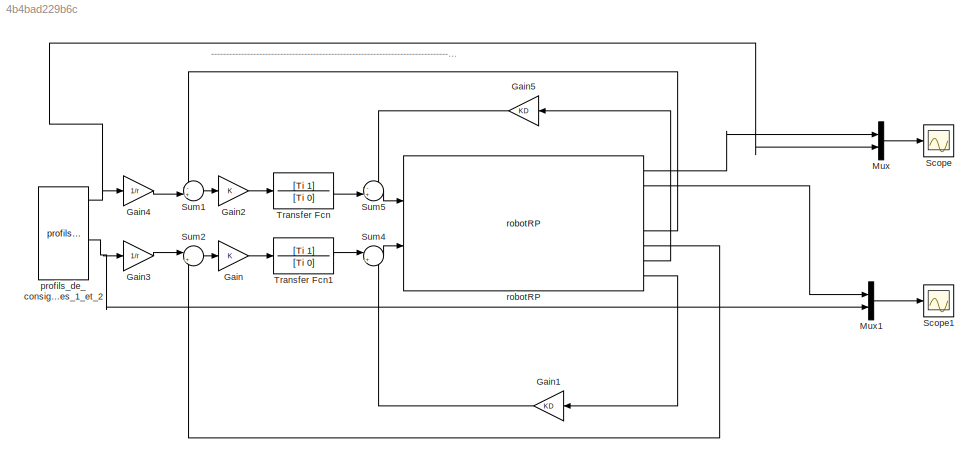
MODEL slx_4b4bad229b6c
KIND model
BLOCK [Gain] Gain
  Gain = K
  OutDataTypeStr = Inherit: Inherit via internal rule
  ParamDataTypeStr = Inherit: Inherit via internal rule
  SaturateOnIntegerOverflow = off
BLOCK [Gain] Gain1
  Gain = KD
  OutDataTypeStr = Inherit: Inherit via internal rule
  ParamDataTypeStr = Inherit: Inherit via internal rule
  SaturateOnIntegerOverflow = off
BLOCK [Gain] Gain2
  Gain = K
  OutDataTypeStr = Inherit: Inherit via internal rule
  ParamDataTypeStr = Inherit: Inherit via internal rule
  SaturateOnIntegerOverflow = off
BLOCK [Gain] Gain3
  Gain = 1/r
  OutDataTypeStr = Inherit: Inherit via internal rule
  ParamDataTypeStr = Inherit: Inherit via internal rule
  SaturateOnIntegerOverflow = off
BLOCK [Gain] Gain4
  Gain = 1/r
  OutDataTypeStr = Inherit: Inherit via internal rule
  ParamDataTypeStr = Inherit: Inherit via internal rule
  SaturateOnIntegerOverflow = off
BLOCK [Gain] Gain5
  Gain = KD
  OutDataTypeStr = Inherit: Inherit via internal rule
  ParamDataTypeStr = Inherit: Inherit via internal rule
  SaturateOnIntegerOverflow = off
BLOCK [Mux] Mux
  DisplayOption = bar
  Inputs = 2
  Ports = [2, 1]
BLOCK [Mux] Mux1
  DisplayOption = bar
  Inputs = 2
  Ports = [2, 1]
BLOCK [Scope] Scope
  Floating = off
  NumInputPorts = 1
  Ports = [1]
  ShowLegends = off
BLOCK [Scope] Scope1
  Floating = off
  NumInputPorts = 1
  Ports = [1]
  SaveName = ScopeData1
  ShowLegends = off
BLOCK [Sum] Sum1
  IconShape = round
  InputSameDT = off
  Inputs = -+|
  OutDataTypeStr = Inherit: Inherit via internal rule
  Ports = [2, 1]
  SaturateOnIntegerOverflow = off
BLOCK [Sum] Sum2
  IconShape = round
  InputSameDT = off
  Inputs = |+-
  OutDataTypeStr = Inherit: Inherit via internal rule
  Ports = [2, 1]
  SaturateOnIntegerOverflow = off
BLOCK [Sum] Sum4
  IconShape = round
  InputSameDT = off
  Inputs = |+-
  OutDataTypeStr = Inherit: Inherit via internal rule
  Ports = [2, 1]
  SaturateOnIntegerOverflow = off
BLOCK [Sum] Sum5
  IconShape = round
  InputSameDT = off
  Inputs = -+|
  OutDataTypeStr = Inherit: Inherit via internal rule
  Ports = [2, 1]
  SaturateOnIntegerOverflow = off
BLOCK [TransferFcn] Transfer Fcn
  Denominator = [Ti 0]
  Numerator = [Ti 1]
BLOCK [TransferFcn] Transfer Fcn1
  Denominator = [Ti 0]
  Numerator = [Ti 1]
BLOCK [Reference] profils_de_consignes axes_1_et_2  REF=lib_robotRP/profils_de_consignes
axes_1_et_2
  Ports = [0, 6]
  SourceBlock = lib_robotRP/profils_de_consignes\naxes_1_et_2
  SourceType = profils_de_consignes_axes_1_et_2
BLOCK [Reference] robotRP  REF=lib_robotRP/robotRP
  Beff = 0.0125
  F1 = 0
  F2 = 0
  H1 = 0
  H2 = 0
  Jm = 0.01
  Km_sur_R = 0.3
  Ports = [2, 8]
  SourceBlock = lib_robotRP/robotRP
  SourceType = robotRP_commande_en_vitesse
  gX = 0
  gY = 0
  m = 15
  r = r
  vecteur_theta_dtheta_initial = [0 ; 0.5/r ; 0 ; 0]
ANNOTATION (root): --------------------------------------------------------------------------------------------------------------------------------------------------------------------------------
LINE Gain1:1 -> Sum4:2
LINE Gain2:1 -> Transfer Fcn:1
LINE Gain3:1 -> Sum2:1
LINE Gain4:1 -> Sum1:2
LINE Gain5:1 -> Sum5:1
LINE Gain:1 -> Transfer Fcn1:1
LINE Mux1:1 -> Scope1:1
LINE Mux:1 -> Scope:1
LINE Sum1:1 -> Gain2:1
LINE Sum2:1 -> Gain:1
LINE Sum4:1 -> robotRP:2
LINE Sum5:1 -> robotRP:1
LINE Transfer Fcn1:1 -> Sum4:1
LINE Transfer Fcn:1 -> Sum5:2
NET profils_de_consignes axes_1_et_2:1 -> Gain4:1, Mux:2
NET profils_de_consignes axes_1_et_2:4 -> Gain3:1, Mux1:2
LINE robotRP:1 -> Mux:1
LINE robotRP:2 -> Mux1:1
LINE robotRP:5 -> Sum1:1
LINE robotRP:6 -> Sum2:2
LINE robotRP:7 -> Gain5:1
LINE robotRP:8 -> Gain1:1
note: NET lines group one-source signal fan-out (src -> all destinations, sorted); 1:1 wires keep LINE
